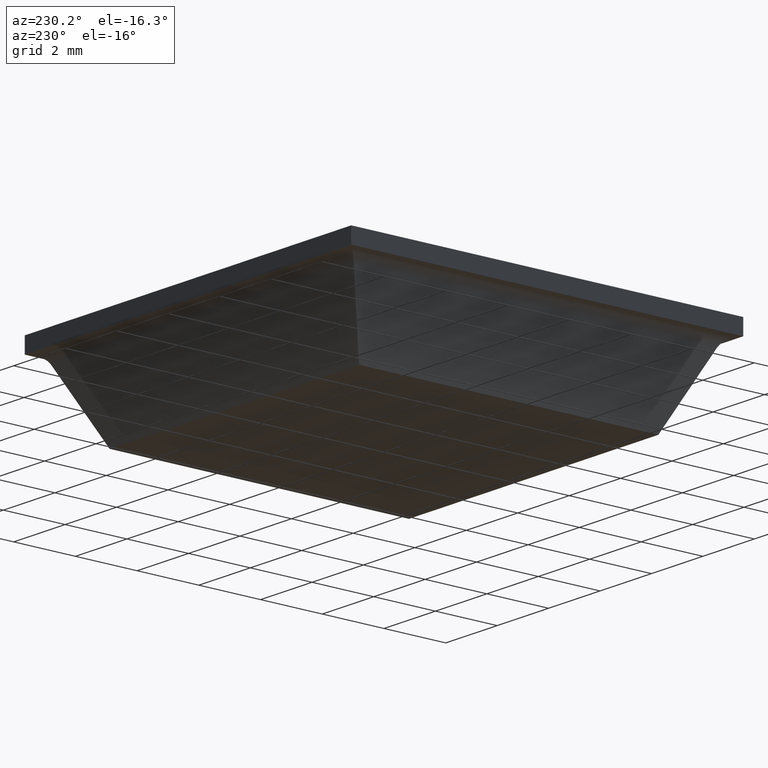
[diagram: clean part render]
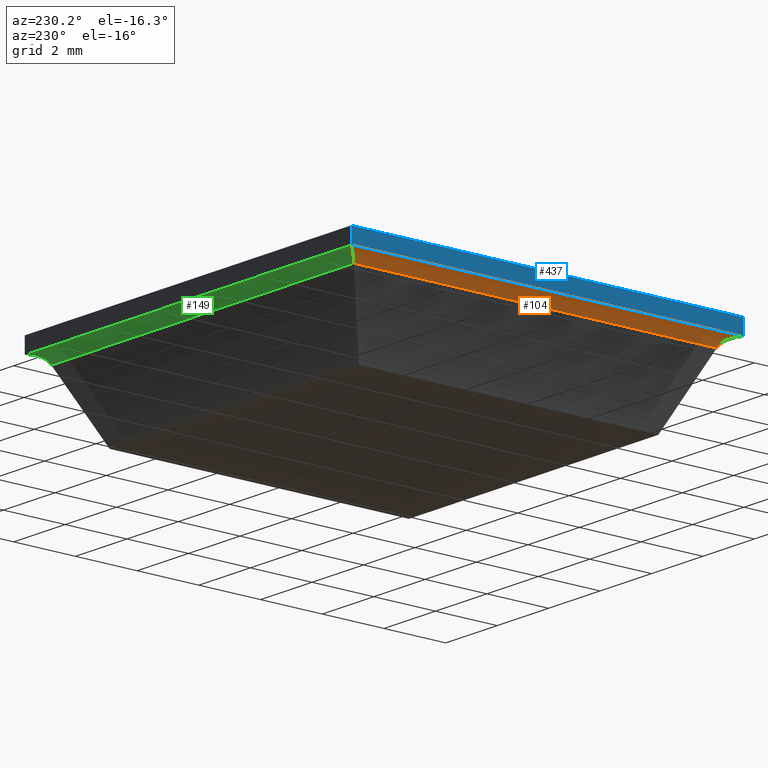
[diagram: same view with three faces highlighted in distinct colors, each labeled with its STEP entity id]
A machine part, auxiliary view with three faces highlighted in distinct colors.
Their STEP definitions:

[orange] entity #104 — the highlighted face is a freeform B-spline surface patch.
#44=CARTESIAN_POINT('',(-6.347392428698098,6.651019152271369,2.499828662487778));
#45=CARTESIAN_POINT('',(-6.347392428698098,-6.658937032214548,2.499828662487778));
#46=CARTESIAN_POINT('',(-6.000215764091201,6.651019152271368,2.508919803397826));
#47=CARTESIAN_POINT('',(-6.000215764091201,-6.658937032214548,2.508919803397826));
#48=CARTESIAN_POINT('',(-5.870493255542651,6.651019152271369,2.186760904612636));
#49=CARTESIAN_POINT('',(-5.870493255542651,-6.658937032214548,2.186760904612636));
#57=(BOUNDED_SURFACE()B_SPLINE_SURFACE(1,2,((#44,#46,#48),(#45,#47,#49)),.UNSPECIFIED.,.F.,.F.,.U.)B_SPLINE_SURFACE_WITH_KNOTS((2,2),(3,3),(0.0,13.309956184485920),(0.0,0.993420241738949),.UNSPECIFIED.)GEOMETRIC_REPRESENTATION_ITEM()RATIONAL_B_SPLINE_SURFACE(((1.0,0.820341980119575,0.997635787319055),(1.0,0.820341980119575,0.997635787319055)))REPRESENTATION_ITEM('')SURFACE());
#58=CARTESIAN_POINT('',(-5.881150035810770,-5.881150035810969,2.211309076796455));
#59=VERTEX_POINT('',#58);
#60=CARTESIAN_POINT('',(-6.334303954544160,-6.334303954544160,2.500000000000000));
#61=VERTEX_POINT('',#60);
#62=CARTESIAN_POINT('',(-5.881150035810770,-5.881150035810969,2.211309076796455));
#63=CARTESIAN_POINT('',(-6.015768782200882,-6.015768782200882,2.500000000000001));
#64=CARTESIAN_POINT('',(-6.334303954544160,-6.334303954544160,2.500000000000000));
#72=(BOUNDED_CURVE()B_SPLINE_CURVE(2,(#62,#63,#64),.UNSPECIFIED.,.F.,.U.)CURVE()GEOMETRIC_REPRESENTATION_ITEM()QUASI_UNIFORM_CURVE()RATIONAL_B_SPLINE_CURVE((1.0,0.843391413755473,1.0))REPRESENTATION_ITEM(''));
#73=EDGE_CURVE('',#59,#61,#72,.T.);
#74=ORIENTED_EDGE('',*,*,#73,.T.);
#75=CARTESIAN_POINT('',(-6.334303954544160,6.334303954544160,2.500000000000000));
#76=VERTEX_POINT('',#75);
#77=CARTESIAN_POINT('',(-6.334303954544160,6.334303954544160,2.500000000000000));
#78=CARTESIAN_POINT('',(-6.334303954544160,-6.334303954544160,2.500000000000000));
#79=QUASI_UNIFORM_CURVE('',1,(#77,#78),.UNSPECIFIED.,.F.,.U.);
#80=EDGE_CURVE('',#76,#61,#79,.T.);
#81=ORIENTED_EDGE('',*,*,#80,.F.);
#82=CARTESIAN_POINT('',(-5.881150035810859,5.881150035810720,2.211309076796675));
#83=VERTEX_POINT('',#82);
#84=CARTESIAN_POINT('',(-6.334303954544160,6.334303954544160,2.500000000000000));
#85=CARTESIAN_POINT('',(-6.015768782200919,6.015768782200919,2.500000000000001));
#86=CARTESIAN_POINT('',(-5.881150035810859,5.881150035810720,2.211309076796675));
#94=(BOUNDED_CURVE()B_SPLINE_CURVE(2,(#84,#85,#86),.UNSPECIFIED.,.F.,.U.)CURVE()GEOMETRIC_REPRESENTATION_ITEM()QUASI_UNIFORM_CURVE()RATIONAL_B_SPLINE_CURVE((1.0,0.843391413755501,1.0))REPRESENTATION_ITEM(''));
#95=EDGE_CURVE('',#76,#83,#94,.T.);
#96=ORIENTED_EDGE('',*,*,#95,.T.);
#97=CARTESIAN_POINT('',(-5.881150035810770,-5.881150035810969,2.211309076796455));
#98=CARTESIAN_POINT('',(-5.881150035810859,5.881150035810720,2.211309076796675));
#99=QUASI_UNIFORM_CURVE('',1,(#97,#98),.UNSPECIFIED.,.F.,.U.);
#100=EDGE_CURVE('',#59,#83,#99,.T.);
#101=ORIENTED_EDGE('',*,*,#100,.F.);
#102=EDGE_LOOP('',(#74,#81,#96,#101));
#103=FACE_OUTER_BOUND('',#102,.T.);
#104=ADVANCED_FACE('',(#103),#57,.F.);

[blue] entity #437 — the highlighted face is a freeform B-spline surface patch.
#326=CARTESIAN_POINT('',(-6.350000000000000,-6.350000000000000,2.500000000000000));
#327=VERTEX_POINT('',#326);
#333=CARTESIAN_POINT('',(-6.350000000000000,6.350000000000000,2.500000000000000));
#334=VERTEX_POINT('',#333);
#335=CARTESIAN_POINT('',(-6.350000000000000,-6.350000000000000,2.500000000000000));
#336=CARTESIAN_POINT('',(-6.350000000000000,6.350000000000000,2.500000000000000));
#337=QUASI_UNIFORM_CURVE('',1,(#335,#336),.UNSPECIFIED.,.F.,.U.);
#338=EDGE_CURVE('',#327,#334,#337,.T.);
#380=CARTESIAN_POINT('',(-6.350000000000000,6.350000000000000,3.0));
#381=VERTEX_POINT('',#380);
#387=CARTESIAN_POINT('',(-6.350000000000000,-6.350000000000000,3.0));
#388=VERTEX_POINT('',#387);
#389=CARTESIAN_POINT('',(-6.350000000000000,-6.350000000000000,3.0));
#390=CARTESIAN_POINT('',(-6.350000000000000,6.350000000000000,3.0));
#391=QUASI_UNIFORM_CURVE('',1,(#389,#390),.UNSPECIFIED.,.F.,.U.);
#392=EDGE_CURVE('',#388,#381,#391,.T.);
#413=CARTESIAN_POINT('',(-6.350000000000000,6.350000000000000,3.0));
#414=CARTESIAN_POINT('',(-6.350000000000000,6.350000000000000,2.500000000000000));
#415=QUASI_UNIFORM_CURVE('',1,(#413,#414),.UNSPECIFIED.,.F.,.U.);
#416=EDGE_CURVE('',#381,#334,#415,.T.);
#422=CARTESIAN_POINT('',(-6.350000000000000,-6.984364856166422,2.475025000969097));
#423=CARTESIAN_POINT('',(-6.350000000000000,-6.984364856166422,3.024975012441949));
#424=CARTESIAN_POINT('',(-6.350000000000000,6.984365310353814,2.475025000969097));
#425=CARTESIAN_POINT('',(-6.350000000000000,6.984365310353814,3.024975012441949));
#426=B_SPLINE_SURFACE_WITH_KNOTS('',1,1,((#422,#424),(#423,#425)),.UNSPECIFIED.,.F.,.F.,.U.,(2,2),(2,2),(0.041708334948495,0.958291687403247),(0.0,13.968730166520240),.UNSPECIFIED.);
#427=ORIENTED_EDGE('',*,*,#338,.F.);
#428=CARTESIAN_POINT('',(-6.350000000000000,-6.350000000000000,3.0));
#429=CARTESIAN_POINT('',(-6.350000000000000,-6.350000000000000,2.500000000000000));
#430=QUASI_UNIFORM_CURVE('',1,(#428,#429),.UNSPECIFIED.,.F.,.U.);
#431=EDGE_CURVE('',#388,#327,#430,.T.);
#432=ORIENTED_EDGE('',*,*,#431,.F.);
#433=ORIENTED_EDGE('',*,*,#392,.T.);
#434=ORIENTED_EDGE('',*,*,#416,.T.);
#435=EDGE_LOOP('',(#427,#432,#433,#434));
#436=FACE_OUTER_BOUND('',#435,.T.);
#437=ADVANCED_FACE('',(#436),#426,.T.);

[green] entity #149 — the highlighted face is a freeform B-spline surface patch.
#75=CARTESIAN_POINT('',(-6.334303954544160,6.334303954544160,2.500000000000000));
#76=VERTEX_POINT('',#75);
#82=CARTESIAN_POINT('',(-5.881150035810859,5.881150035810720,2.211309076796675));
#83=VERTEX_POINT('',#82);
#84=CARTESIAN_POINT('',(-6.334303954544160,6.334303954544160,2.500000000000000));
#85=CARTESIAN_POINT('',(-6.015768782200919,6.015768782200919,2.500000000000001));
#86=CARTESIAN_POINT('',(-5.881150035810859,5.881150035810720,2.211309076796675));
#94=(BOUNDED_CURVE()B_SPLINE_CURVE(2,(#84,#85,#86),.UNSPECIFIED.,.F.,.U.)CURVE()GEOMETRIC_REPRESENTATION_ITEM()QUASI_UNIFORM_CURVE()RATIONAL_B_SPLINE_CURVE((1.0,0.843391413755501,1.0))REPRESENTATION_ITEM(''));
#95=EDGE_CURVE('',#76,#83,#94,.T.);
#105=CARTESIAN_POINT('',(6.651019152271369,6.347392428698098,2.499828662487778));
#106=CARTESIAN_POINT('',(-6.658937032214548,6.347392428698098,2.499828662487778));
#107=CARTESIAN_POINT('',(6.651019152271368,6.000215764091201,2.508919803397826));
#108=CARTESIAN_POINT('',(-6.658937032214548,6.000215764091201,2.508919803397826));
#109=CARTESIAN_POINT('',(6.651019152271369,5.870493255542651,2.186760904612636));
#110=CARTESIAN_POINT('',(-6.658937032214548,5.870493255542651,2.186760904612636));
#118=(BOUNDED_SURFACE()B_SPLINE_SURFACE(1,2,((#105,#107,#109),(#106,#108,#110)),.UNSPECIFIED.,.F.,.F.,.U.)B_SPLINE_SURFACE_WITH_KNOTS((2,2),(3,3),(0.0,13.309956184485920),(0.0,0.993420241738949),.UNSPECIFIED.)GEOMETRIC_REPRESENTATION_ITEM()RATIONAL_B_SPLINE_SURFACE(((1.0,0.820341980119575,0.997635787319055),(1.0,0.820341980119575,0.997635787319055)))REPRESENTATION_ITEM('')SURFACE());
#119=CARTESIAN_POINT('',(6.334303954544160,6.334303954544160,2.500000000000000));
#120=VERTEX_POINT('',#119);
#121=CARTESIAN_POINT('',(5.881150035810720,5.881150035810859,2.211309076796675));
#122=VERTEX_POINT('',#121);
#123=CARTESIAN_POINT('',(6.334303954544160,6.334303954544160,2.500000000000000));
#124=CARTESIAN_POINT('',(6.015768782200919,6.015768782200919,2.500000000000001));
#125=CARTESIAN_POINT('',(5.881150035810720,5.881150035810859,2.211309076796675));
#133=(BOUNDED_CURVE()B_SPLINE_CURVE(2,(#123,#124,#125),.UNSPECIFIED.,.F.,.U.)CURVE()GEOMETRIC_REPRESENTATION_ITEM()QUASI_UNIFORM_CURVE()RATIONAL_B_SPLINE_CURVE((1.0,0.843391413755501,1.0))REPRESENTATION_ITEM(''));
#134=EDGE_CURVE('',#120,#122,#133,.T.);
#135=ORIENTED_EDGE('',*,*,#134,.T.);
#136=CARTESIAN_POINT('',(-5.881150035810859,5.881150035810720,2.211309076796675));
#137=CARTESIAN_POINT('',(5.881150035810720,5.881150035810859,2.211309076796675));
#138=QUASI_UNIFORM_CURVE('',1,(#136,#137),.UNSPECIFIED.,.F.,.U.);
#139=EDGE_CURVE('',#83,#122,#138,.T.);
#140=ORIENTED_EDGE('',*,*,#139,.F.);
#141=ORIENTED_EDGE('',*,*,#95,.F.);
#142=CARTESIAN_POINT('',(6.334303954544160,6.334303954544160,2.500000000000000));
#143=CARTESIAN_POINT('',(-6.334303954544160,6.334303954544160,2.500000000000000));
#144=QUASI_UNIFORM_CURVE('',1,(#142,#143),.UNSPECIFIED.,.F.,.U.);
#145=EDGE_CURVE('',#120,#76,#144,.T.);
#146=ORIENTED_EDGE('',*,*,#145,.F.);
#147=EDGE_LOOP('',(#135,#140,#141,#146));
#148=FACE_OUTER_BOUND('',#147,.T.);
#149=ADVANCED_FACE('',(#148),#118,.F.);